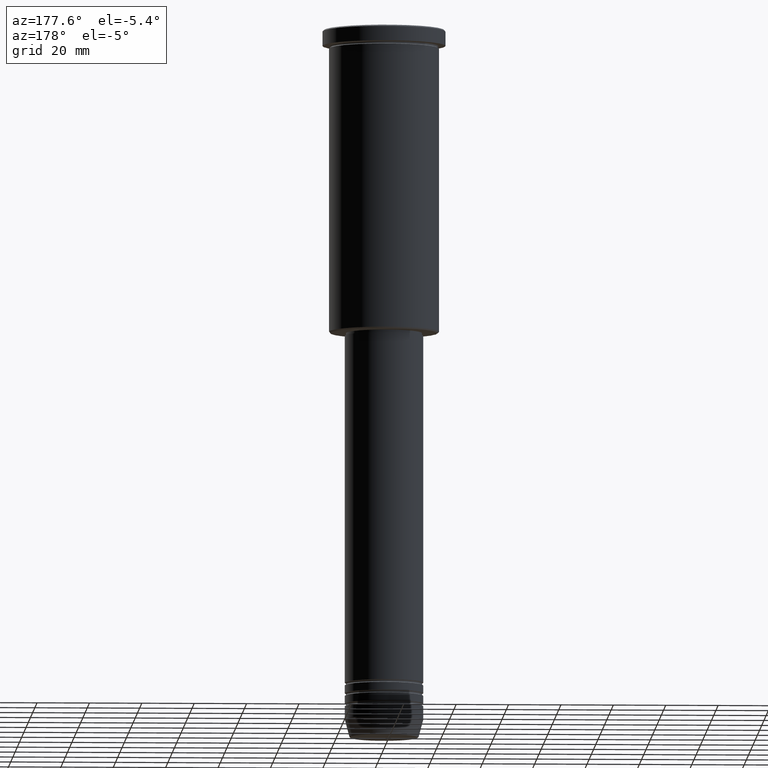
[diagram: clean part render]
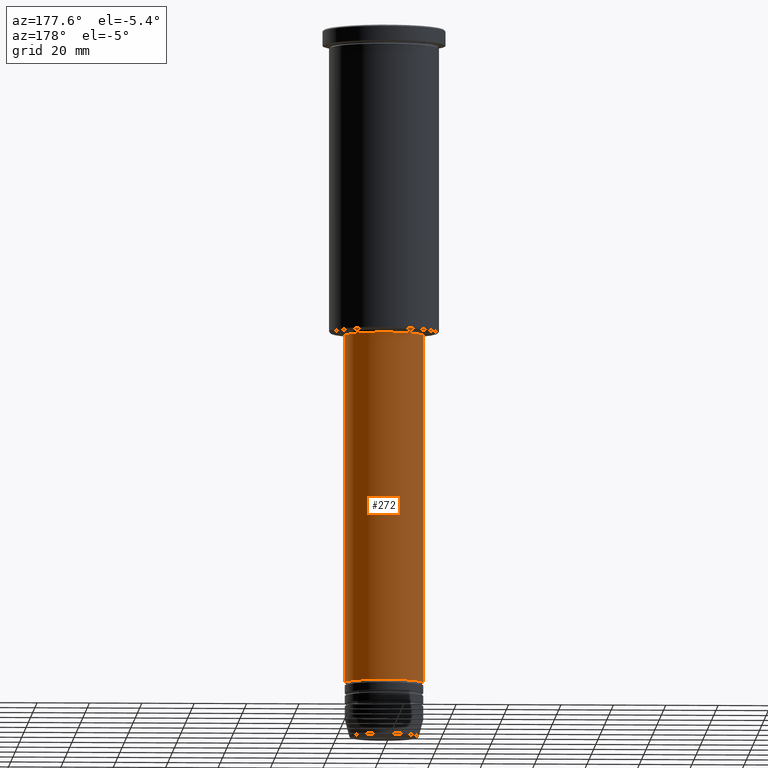
[diagram: same view with one face highlighted and labeled with its STEP entity id]
A machine part, auxiliary view. The second image highlights one B-rep face of the part: STEP entity #272.
In plain terms, the highlighted cylindrical surface (partial cylindrical patch) has radius 15 mm, axis along (-0, -0, 1).
Its self-contained STEP definition (entity closure, byte-faithful):
#31 = VERTEX_POINT ( 'NONE', #884 ) ;
#47 = EDGE_CURVE ( 'NONE', #139, #993, #112, .T. ) ;
#61 = VECTOR ( 'NONE', #913, 1000.000000000000000 ) ;
#103 = CARTESIAN_POINT ( 'NONE',  ( 15.00000000000000000, 0.000000000000000000, 0.000000000000000000 ) ) ;
#112 = CIRCLE ( 'NONE', #434, 15.00000000000000000 ) ;
#113 = ORIENTED_EDGE ( 'NONE', *, *, #972, .F. ) ;
#139 = VERTEX_POINT ( 'NONE', #920 ) ;
#242 = AXIS2_PLACEMENT_3D ( 'NONE', #749, #864, #1125 ) ;
#272 = ADVANCED_FACE ( 'NONE', ( #470 ), #587, .T. ) ;
#288 = DIRECTION ( 'NONE',  ( -0.000000000000000000, -0.000000000000000000, 1.000000000000000000 ) ) ;
#370 = DIRECTION ( 'NONE',  ( 1.000000000000000000, 0.000000000000000000, 0.000000000000000000 ) ) ;
#395 = CARTESIAN_POINT ( 'NONE',  ( 0.000000000000000000, 0.000000000000000000, -117.0000000000000426 ) ) ;
#397 = LINE ( 'NONE', #103, #496 ) ;
#419 = EDGE_CURVE ( 'NONE', #483, #993, #812, .T. ) ;
#431 = EDGE_CURVE ( 'NONE', #31, #483, #530, .T. ) ;
#434 = AXIS2_PLACEMENT_3D ( 'NONE', #395, #435, #789 ) ;
#435 = DIRECTION ( 'NONE',  ( -0.000000000000000000, -0.000000000000000000, 1.000000000000000000 ) ) ;
#470 = FACE_OUTER_BOUND ( 'NONE', #1030, .T. ) ;
#483 = VERTEX_POINT ( 'NONE', #826 ) ;
#496 = VECTOR ( 'NONE', #288, 1000.000000000000000 ) ;
#529 = CARTESIAN_POINT ( 'NONE',  ( 0.000000000000000000, 0.000000000000000000, -249.9999999999999147 ) ) ;
#530 = CIRCLE ( 'NONE', #988, 15.00000000000000000 ) ;
#587 = CYLINDRICAL_SURFACE ( 'NONE', #242, 15.00000000000000000 ) ;
#628 = DIRECTION ( 'NONE',  ( -0.000000000000000000, -0.000000000000000000, 1.000000000000000000 ) ) ;
#711 = ORIENTED_EDGE ( 'NONE', *, *, #47, .F. ) ;
#749 = CARTESIAN_POINT ( 'NONE',  ( 0.000000000000000000, 0.000000000000000000, 0.000000000000000000 ) ) ;
#769 = ORIENTED_EDGE ( 'NONE', *, *, #431, .T. ) ;
#789 = DIRECTION ( 'NONE',  ( 1.000000000000000000, 0.000000000000000000, 0.000000000000000000 ) ) ;
#812 = LINE ( 'NONE', #1001, #61 ) ;
#826 = CARTESIAN_POINT ( 'NONE',  ( -15.00000000000000000, 1.836970198721029589E-15, -249.9999999999999147 ) ) ;
#848 = ORIENTED_EDGE ( 'NONE', *, *, #419, .T. ) ;
#864 = DIRECTION ( 'NONE',  ( -0.000000000000000000, -0.000000000000000000, 1.000000000000000000 ) ) ;
#884 = CARTESIAN_POINT ( 'NONE',  ( 15.00000000000000000, 0.000000000000000000, -249.9999999999999147 ) ) ;
#913 = DIRECTION ( 'NONE',  ( -0.000000000000000000, -0.000000000000000000, 1.000000000000000000 ) ) ;
#920 = CARTESIAN_POINT ( 'NONE',  ( 15.00000000000000000, 0.000000000000000000, -117.0000000000000426 ) ) ;
#972 = EDGE_CURVE ( 'NONE', #31, #139, #397, .T. ) ;
#988 = AXIS2_PLACEMENT_3D ( 'NONE', #529, #628, #370 ) ;
#993 = VERTEX_POINT ( 'NONE', #1100 ) ;
#1001 = CARTESIAN_POINT ( 'NONE',  ( -15.00000000000000000, 1.836970198721029589E-15, 0.000000000000000000 ) ) ;
#1030 = EDGE_LOOP ( 'NONE', ( #769, #848, #711, #113 ) ) ;
#1100 = CARTESIAN_POINT ( 'NONE',  ( -15.00000000000000000, 1.836970198721029589E-15, -117.0000000000000426 ) ) ;
#1125 = DIRECTION ( 'NONE',  ( 1.000000000000000000, 0.000000000000000000, 0.000000000000000000 ) ) ;